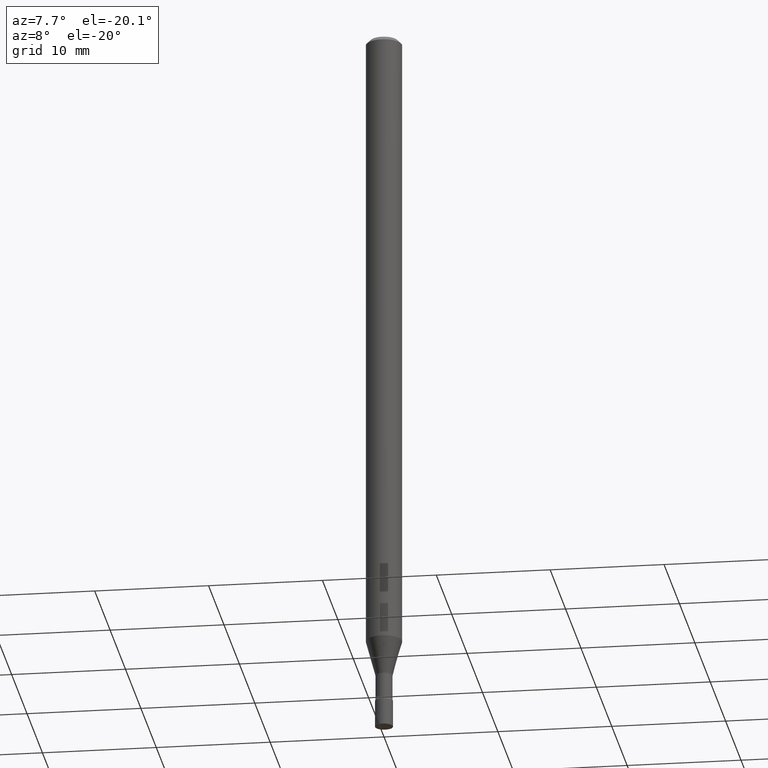
[diagram: clean part render]
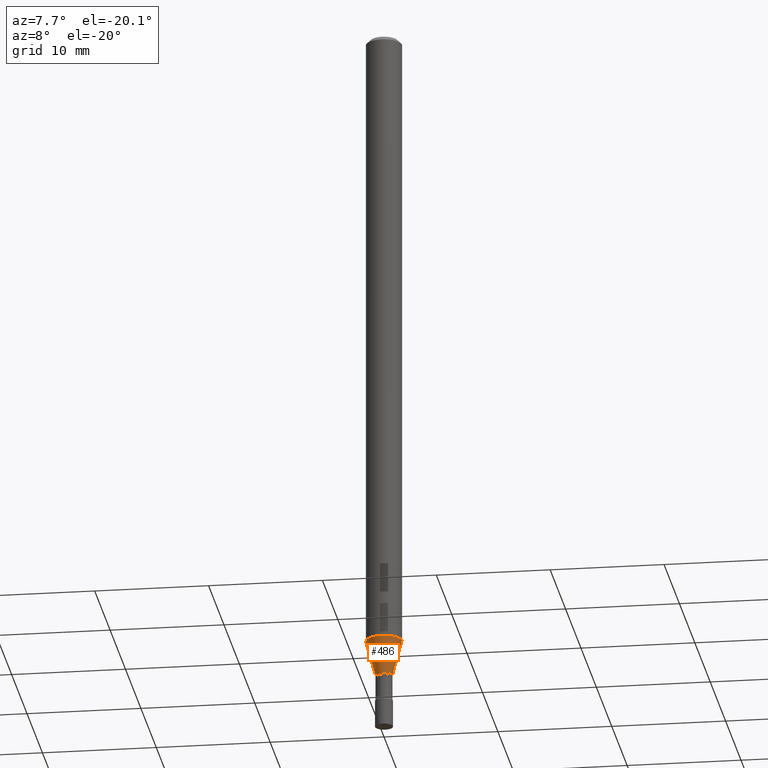
[diagram: same view with one face highlighted and labeled with its STEP entity id]
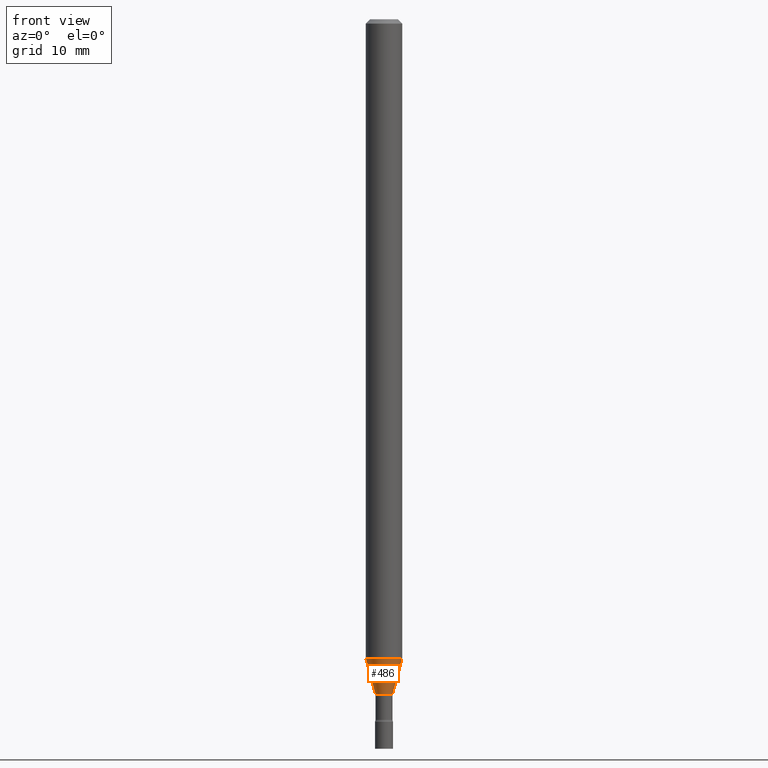
[diagram: same view with one face highlighted and labeled with its STEP entity id]
A machine part, auxiliary view. The second image highlights one B-rep face of the part: STEP entity #486.
A second angle (front view) of the same face is appended — the face is thin or edge-on in the first view.
In plain terms, the highlighted conical surface has half-angle 15 deg.
Its self-contained STEP definition (entity closure, byte-faithful):
#9 = CIRCLE ( 'NONE', #351, 0.06250000000000000000 ) ;
#18 = LINE ( 'NONE', #449, #417 ) ;
#24 = CARTESIAN_POINT ( 'NONE',  ( 5.654150090135328854E-29, -8.072627823669426720E-15, -2.312092501787272880 ) ) ;
#26 = CARTESIAN_POINT ( 'NONE',  ( -0.06250000000000000000, -7.200635243462433046E-15, -2.189536105567578161 ) ) ;
#32 = DIRECTION ( 'NONE',  ( -2.445468806185136597E-29, 3.491481338843145583E-15, 1.000000000000000000 ) ) ;
#37 = VERTEX_POINT ( 'NONE', #56 ) ;
#52 = DIRECTION ( 'NONE',  ( 1.000000000000000000, -6.982962677686262766E-15, 0.000000000000000000 ) ) ;
#56 = CARTESIAN_POINT ( 'NONE',  ( -0.02966111260566397720, -7.531254093083343617E-15, -2.312092501787272880 ) ) ;
#75 = CARTESIAN_POINT ( 'NONE',  ( 0.02966111260566397720, -8.279750265973427972E-15, -2.312092501787272880 ) ) ;
#79 = AXIS2_PLACEMENT_3D ( 'NONE', #24, #32, #233 ) ;
#96 = DIRECTION ( 'NONE',  ( -2.445468806185136597E-29, 3.491481338843145583E-15, 1.000000000000000000 ) ) ;
#104 = VECTOR ( 'NONE', #253, 39.37007874015747433 ) ;
#119 = CIRCLE ( 'NONE', #149, 0.02966111260566397720 ) ;
#123 = CONICAL_SURFACE ( 'NONE', #79, 0.02966111260566397720, 0.2617993877991501295 ) ;
#136 = CARTESIAN_POINT ( 'NONE',  ( 5.654150090135328854E-29, -8.072627823669426720E-15, -2.312092501787272880 ) ) ;
#145 = EDGE_CURVE ( 'NONE', #37, #406, #119, .T. ) ;
#149 = AXIS2_PLACEMENT_3D ( 'NONE', #136, #96, #250 ) ;
#157 = ORIENTED_EDGE ( 'NONE', *, *, #145, .T. ) ;
#168 = DIRECTION ( 'NONE',  ( -0.2588190451025214611, 5.211531920934551042E-15, 0.9659258262890682012 ) ) ;
#205 = EDGE_CURVE ( 'NONE', #372, #513, #9, .T. ) ;
#217 = CARTESIAN_POINT ( 'NONE',  ( 5.354442246181599282E-29, -7.644724453312494084E-15, -2.189536105567578161 ) ) ;
#233 = DIRECTION ( 'NONE',  ( 1.000000000000000000, -6.982962677686269077E-15, 0.000000000000000000 ) ) ;
#240 = ORIENTED_EDGE ( 'NONE', *, *, #205, .F. ) ;
#250 = DIRECTION ( 'NONE',  ( 1.000000000000000000, -6.982962677686269077E-15, 0.000000000000000000 ) ) ;
#251 = EDGE_CURVE ( 'NONE', #37, #372, #18, .T. ) ;
#253 = DIRECTION ( 'NONE',  ( 0.2588190451025214611, 1.565188264969621573E-15, 0.9659258262890682012 ) ) ;
#255 = CARTESIAN_POINT ( 'NONE',  ( 0.02966111260566397720, -8.279750265973427972E-15, -2.312092501787272880 ) ) ;
#271 = EDGE_CURVE ( 'NONE', #406, #513, #452, .T. ) ;
#282 = ORIENTED_EDGE ( 'NONE', *, *, #251, .F. ) ;
#296 = DIRECTION ( 'NONE',  ( -2.445468806185136597E-29, 3.491481338843145583E-15, 1.000000000000000000 ) ) ;
#351 = AXIS2_PLACEMENT_3D ( 'NONE', #217, #296, #52 ) ;
#363 = EDGE_LOOP ( 'NONE', ( #282, #157, #440, #240 ) ) ;
#372 = VERTEX_POINT ( 'NONE', #26 ) ;
#390 = FACE_OUTER_BOUND ( 'NONE', #363, .T. ) ;
#406 = VERTEX_POINT ( 'NONE', #75 ) ;
#417 = VECTOR ( 'NONE', #168, 39.37007874015747433 ) ;
#440 = ORIENTED_EDGE ( 'NONE', *, *, #271, .T. ) ;
#449 = CARTESIAN_POINT ( 'NONE',  ( -0.02966111260566397720, -7.861872942704257343E-15, -2.312092501787272880 ) ) ;
#452 = LINE ( 'NONE', #255, #104 ) ;
#486 = ADVANCED_FACE ( 'NONE', ( #390 ), #123, .T. ) ;
#489 = CARTESIAN_POINT ( 'NONE',  ( 0.06250000000000000000, -8.081159620667887331E-15, -2.189536105567578161 ) ) ;
#513 = VERTEX_POINT ( 'NONE', #489 ) ;